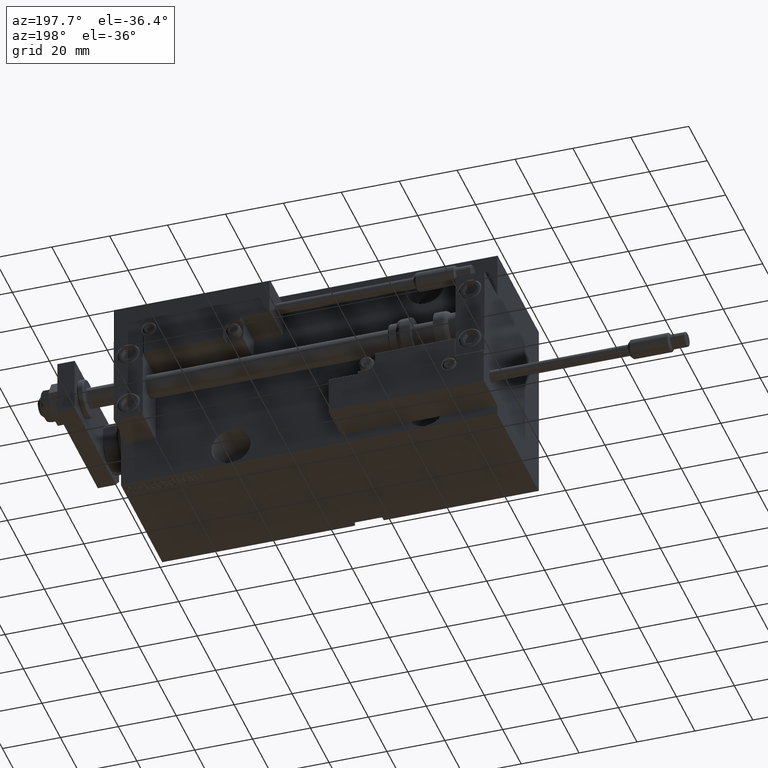
[diagram: clean part render]
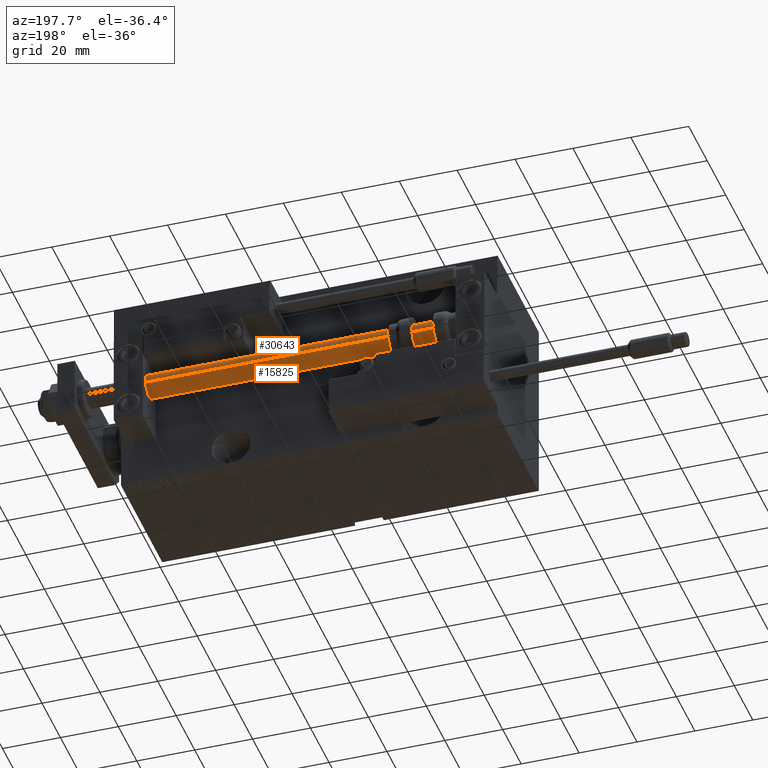
[diagram: same view with one multi-face feature highlighted, each face labeled with its STEP entity id]
A machine part, auxiliary view. The highlighted faces form ONE feature: a constant-radius fillet chain: 2 tangent blend faces with common blend radius 4 mm. The faces share edges in the B-rep.
Their STEP definitions:
[1] entity #30643 (Cylinder):
#534 = CARTESIAN_POINT ( 'NONE',  ( -4.000000000000000000, 0.000000000000000000, 130.0000000000000000 ) ) ;
#2890 = CARTESIAN_POINT ( 'NONE',  ( 4.000000000000000000, 4.898587196589412829E-16, 2.000000000000029310 ) ) ;
#4019 = CARTESIAN_POINT ( 'NONE',  ( 4.000000000000000000, 4.898587196589412829E-16, 130.0000000000000000 ) ) ;
#4640 = AXIS2_PLACEMENT_3D ( 'NONE', #38813, #31463, #31718 ) ;
#6542 = CARTESIAN_POINT ( 'NONE',  ( 4.000000000000000000, 4.898587196589412829E-16, 130.0000000000000000 ) ) ;
#12783 = DIRECTION ( 'NONE',  ( -1.000000000000000000, 0.000000000000000000, 0.000000000000000000 ) ) ;
#13290 = FACE_OUTER_BOUND ( 'NONE', #43907, .T. ) ;
#16417 = CARTESIAN_POINT ( 'NONE',  ( 0.000000000000000000, 0.000000000000000000, 2.000000000000029310 ) ) ;
#16455 = LINE ( 'NONE', #4019, #44119 ) ;
#17513 = AXIS2_PLACEMENT_3D ( 'NONE', #25210, #43967, #12783 ) ;
#19502 = DIRECTION ( 'NONE',  ( -0.000000000000000000, -0.000000000000000000, -1.000000000000000000 ) ) ;
#23408 = ORIENTED_EDGE ( 'NONE', *, *, #48946, .T. ) ;
#25210 = CARTESIAN_POINT ( 'NONE',  ( 0.000000000000000000, 0.000000000000000000, 130.0000000000000000 ) ) ;
#27466 = ORIENTED_EDGE ( 'NONE', *, *, #39119, .F. ) ;
#29978 = ORIENTED_EDGE ( 'NONE', *, *, #44693, .F. ) ;
#30405 = VERTEX_POINT ( 'NONE', #2890 ) ;
#30643 = ADVANCED_FACE ( 'NONE', ( #13290 ), #40914, .T. ) ;
#31399 = AXIS2_PLACEMENT_3D ( 'NONE', #16417, #36433, #39987 ) ;
#31463 = DIRECTION ( 'NONE',  ( 0.000000000000000000, 0.000000000000000000, 1.000000000000000000 ) ) ;
#31718 = DIRECTION ( 'NONE',  ( 1.000000000000000000, 0.000000000000000000, 0.000000000000000000 ) ) ;
#32466 = LINE ( 'NONE', #47934, #43538 ) ;
#32954 = VERTEX_POINT ( 'NONE', #34414 ) ;
#33028 = CIRCLE ( 'NONE', #31399, 4.000000000000000000 ) ;
#34314 = ORIENTED_EDGE ( 'NONE', *, *, #44793, .T. ) ;
#34414 = CARTESIAN_POINT ( 'NONE',  ( -4.000000000000000000, 0.000000000000000000, 2.000000000000029310 ) ) ;
#36433 = DIRECTION ( 'NONE',  ( -0.000000000000000000, -0.000000000000000000, 1.000000000000000000 ) ) ;
#38813 = CARTESIAN_POINT ( 'NONE',  ( 0.000000000000000000, 0.000000000000000000, 130.0000000000000000 ) ) ;
#39119 = EDGE_CURVE ( 'NONE', #40868, #30405, #16455, .T. ) ;
#39987 = DIRECTION ( 'NONE',  ( 1.000000000000000000, 0.000000000000000000, 0.000000000000000000 ) ) ;
#40083 = DIRECTION ( 'NONE',  ( -0.000000000000000000, -0.000000000000000000, -1.000000000000000000 ) ) ;
#40318 = VERTEX_POINT ( 'NONE', #534 ) ;
#40868 = VERTEX_POINT ( 'NONE', #6542 ) ;
#40914 = CYLINDRICAL_SURFACE ( 'NONE', #17513, 4.000000000000000000 ) ;
#43538 = VECTOR ( 'NONE', #40083, 1000.000000000000000 ) ;
#43907 = EDGE_LOOP ( 'NONE', ( #27466, #29978, #34314, #23408 ) ) ;
#43967 = DIRECTION ( 'NONE',  ( -0.000000000000000000, -0.000000000000000000, -1.000000000000000000 ) ) ;
#44119 = VECTOR ( 'NONE', #19502, 1000.000000000000000 ) ;
#44693 = EDGE_CURVE ( 'NONE', #40318, #40868, #49148, .T. ) ;
#44793 = EDGE_CURVE ( 'NONE', #40318, #32954, #32466, .T. ) ;
#47934 = CARTESIAN_POINT ( 'NONE',  ( -4.000000000000000000, 0.000000000000000000, 130.0000000000000000 ) ) ;
#48946 = EDGE_CURVE ( 'NONE', #32954, #30405, #33028, .T. ) ;
#49148 = CIRCLE ( 'NONE', #4640, 4.000000000000000000 ) ;
[2] entity #15825 (Cylinder):
#108 = AXIS2_PLACEMENT_3D ( 'NONE', #31330, #12318, #3679 ) ;
#534 = CARTESIAN_POINT ( 'NONE',  ( -4.000000000000000000, 0.000000000000000000, 130.0000000000000000 ) ) ;
#775 = EDGE_LOOP ( 'NONE', ( #46249, #11256, #10468, #5694 ) ) ;
#2890 = CARTESIAN_POINT ( 'NONE',  ( 4.000000000000000000, 4.898587196589412829E-16, 2.000000000000029310 ) ) ;
#3679 = DIRECTION ( 'NONE',  ( 1.000000000000000000, 0.000000000000000000, 0.000000000000000000 ) ) ;
#4019 = CARTESIAN_POINT ( 'NONE',  ( 4.000000000000000000, 4.898587196589412829E-16, 130.0000000000000000 ) ) ;
#4617 = DIRECTION ( 'NONE',  ( -0.000000000000000000, -0.000000000000000000, -1.000000000000000000 ) ) ;
#5027 = CIRCLE ( 'NONE', #108, 4.000000000000000000 ) ;
#5694 = ORIENTED_EDGE ( 'NONE', *, *, #44793, .F. ) ;
#6542 = CARTESIAN_POINT ( 'NONE',  ( 4.000000000000000000, 4.898587196589412829E-16, 130.0000000000000000 ) ) ;
#10468 = ORIENTED_EDGE ( 'NONE', *, *, #19441, .T. ) ;
#11256 = ORIENTED_EDGE ( 'NONE', *, *, #39119, .T. ) ;
#12318 = DIRECTION ( 'NONE',  ( -0.000000000000000000, -0.000000000000000000, 1.000000000000000000 ) ) ;
#12684 = EDGE_CURVE ( 'NONE', #40868, #40318, #32331, .T. ) ;
#15825 = ADVANCED_FACE ( 'NONE', ( #19594 ), #31246, .T. ) ;
#16455 = LINE ( 'NONE', #4019, #44119 ) ;
#19441 = EDGE_CURVE ( 'NONE', #30405, #32954, #5027, .T. ) ;
#19502 = DIRECTION ( 'NONE',  ( -0.000000000000000000, -0.000000000000000000, -1.000000000000000000 ) ) ;
#19594 = FACE_OUTER_BOUND ( 'NONE', #775, .T. ) ;
#20111 = DIRECTION ( 'NONE',  ( -1.000000000000000000, 0.000000000000000000, 0.000000000000000000 ) ) ;
#22341 = CARTESIAN_POINT ( 'NONE',  ( 0.000000000000000000, 0.000000000000000000, 130.0000000000000000 ) ) ;
#23148 = CARTESIAN_POINT ( 'NONE',  ( 0.000000000000000000, 0.000000000000000000, 130.0000000000000000 ) ) ;
#26632 = DIRECTION ( 'NONE',  ( 0.000000000000000000, 0.000000000000000000, 1.000000000000000000 ) ) ;
#30405 = VERTEX_POINT ( 'NONE', #2890 ) ;
#31246 = CYLINDRICAL_SURFACE ( 'NONE', #34049, 4.000000000000000000 ) ;
#31330 = CARTESIAN_POINT ( 'NONE',  ( 0.000000000000000000, 0.000000000000000000, 2.000000000000029310 ) ) ;
#32331 = CIRCLE ( 'NONE', #45275, 4.000000000000000000 ) ;
#32466 = LINE ( 'NONE', #47934, #43538 ) ;
#32954 = VERTEX_POINT ( 'NONE', #34414 ) ;
#34049 = AXIS2_PLACEMENT_3D ( 'NONE', #23148, #4617, #20111 ) ;
#34414 = CARTESIAN_POINT ( 'NONE',  ( -4.000000000000000000, 0.000000000000000000, 2.000000000000029310 ) ) ;
#39119 = EDGE_CURVE ( 'NONE', #40868, #30405, #16455, .T. ) ;
#40083 = DIRECTION ( 'NONE',  ( -0.000000000000000000, -0.000000000000000000, -1.000000000000000000 ) ) ;
#40318 = VERTEX_POINT ( 'NONE', #534 ) ;
#40868 = VERTEX_POINT ( 'NONE', #6542 ) ;
#42115 = DIRECTION ( 'NONE',  ( 1.000000000000000000, 0.000000000000000000, 0.000000000000000000 ) ) ;
#43538 = VECTOR ( 'NONE', #40083, 1000.000000000000000 ) ;
#44119 = VECTOR ( 'NONE', #19502, 1000.000000000000000 ) ;
#44793 = EDGE_CURVE ( 'NONE', #40318, #32954, #32466, .T. ) ;
#45275 = AXIS2_PLACEMENT_3D ( 'NONE', #22341, #26632, #42115 ) ;
#46249 = ORIENTED_EDGE ( 'NONE', *, *, #12684, .F. ) ;
#47934 = CARTESIAN_POINT ( 'NONE',  ( -4.000000000000000000, 0.000000000000000000, 130.0000000000000000 ) ) ;